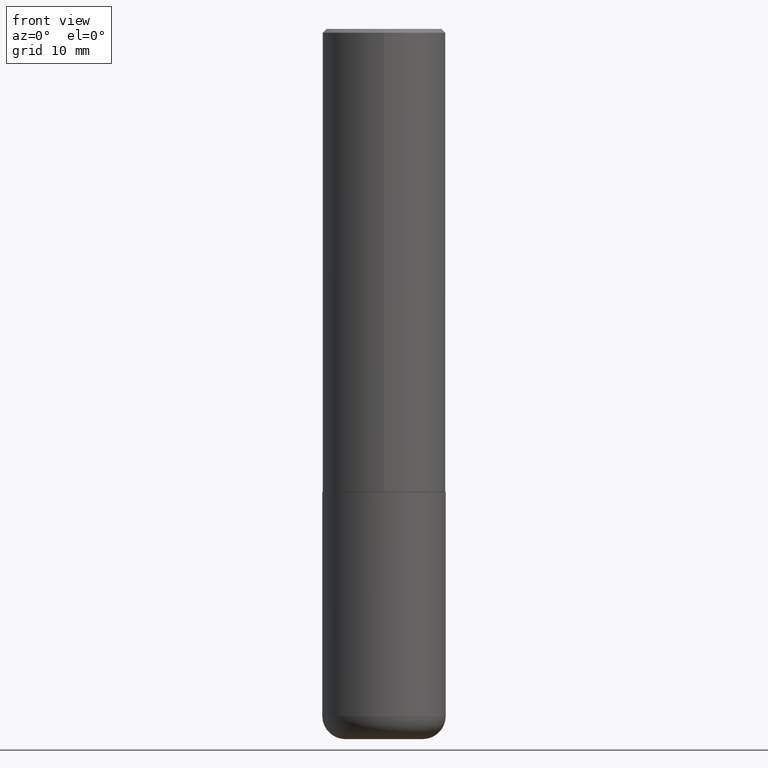
[diagram: clean part render]
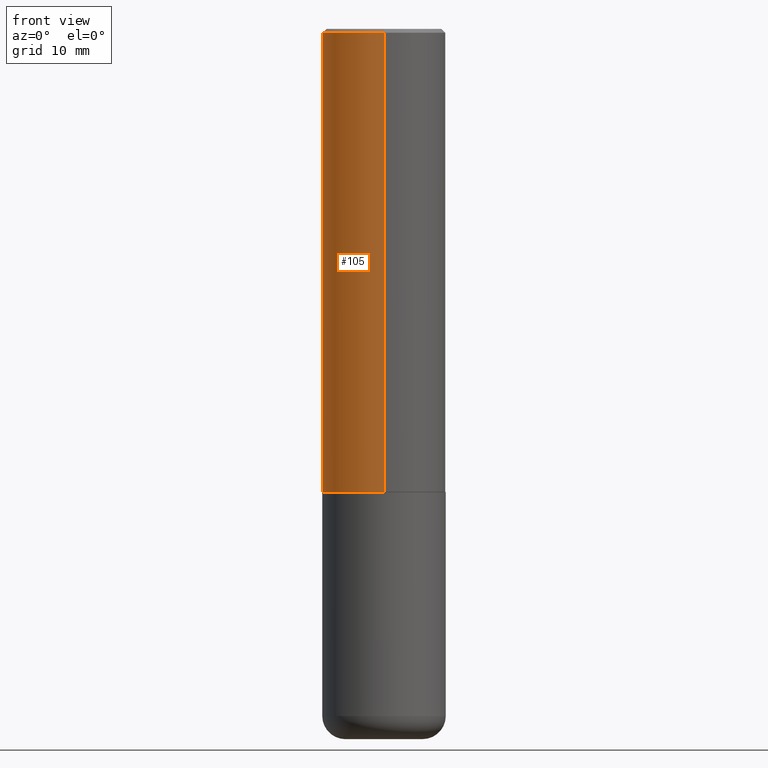
[diagram: same view with one face highlighted and labeled with its STEP entity id]
A machine part, front view. The second image highlights one B-rep face of the part: STEP entity #105.
In plain terms, the highlighted cylindrical surface (partial cylindrical patch) has radius 7.9997 mm, axis along (-0, 0, 1).
Its self-contained STEP definition (entity closure, byte-faithful):
#17 = ORIENTED_EDGE ( 'NONE', *, *, #366, .T. ) ;
#33 = EDGE_CURVE ( 'NONE', #193, #78, #50, .T. ) ;
#40 = EDGE_CURVE ( 'NONE', #196, #310, #337, .T. ) ;
#47 = DIRECTION ( 'NONE',  ( -6.982962677686265922E-15, -1.000000000000000000, 3.469564049740290009E-15 ) ) ;
#48 = CARTESIAN_POINT ( 'NONE',  ( -2.160713844398143363E-15, -0.3149500000000000632, -0.01999999999999896999 ) ) ;
#50 = CIRCLE ( 'NONE', #377, 0.3149500000000002853 ) ;
#54 = CARTESIAN_POINT ( 'NONE',  ( 2.237854346276435985E-15, 0.3149500000000001743, -1.099072284946507453E-15 ) ) ;
#60 = CARTESIAN_POINT ( 'NONE',  ( -2.199284095337233467E-15, -0.3149500000000085564, -2.361199999999998411 ) ) ;
#70 = ORIENTED_EDGE ( 'NONE', *, *, #40, .F. ) ;
#73 = DIRECTION ( 'NONE',  ( -2.446732064424175452E-29, 3.489672281144647968E-15, 1.000000000000000000 ) ) ;
#78 = VERTEX_POINT ( 'NONE', #60 ) ;
#90 = LINE ( 'NONE', #54, #357 ) ;
#96 = EDGE_CURVE ( 'NONE', #193, #196, #90, .T. ) ;
#105 = ADVANCED_FACE ( 'NONE', ( #123 ), #218, .T. ) ;
#123 = FACE_OUTER_BOUND ( 'NONE', #168, .T. ) ;
#145 = LINE ( 'NONE', #276, #339 ) ;
#168 = EDGE_LOOP ( 'NONE', ( #322, #374, #17, #70 ) ) ;
#173 = DIRECTION ( 'NONE',  ( -6.982962677686265922E-15, -1.000000000000000000, 3.483117034309591132E-15 ) ) ;
#191 = DIRECTION ( 'NONE',  ( -2.446732064424175452E-29, 3.489672281144648363E-15, 1.000000000000000000 ) ) ;
#192 = AXIS2_PLACEMENT_3D ( 'NONE', #200, #338, #173 ) ;
#193 = VERTEX_POINT ( 'NONE', #381 ) ;
#196 = VERTEX_POINT ( 'NONE', #267 ) ;
#200 = CARTESIAN_POINT ( 'NONE',  ( 4.893464128848368385E-31, -6.979344562289319109E-17, -0.02000000000000006981 ) ) ;
#205 = CARTESIAN_POINT ( 'NONE',  ( 5.777223750518362448E-29, -8.239814190238740974E-15, -2.361199999999999743 ) ) ;
#218 = CYLINDRICAL_SURFACE ( 'NONE', #330, 0.3149500000000001743 ) ;
#258 = DIRECTION ( 'NONE',  ( -6.982962677686264344E-15, -1.000000000000000000, 3.489672281144647968E-15 ) ) ;
#267 = CARTESIAN_POINT ( 'NONE',  ( 2.199284095337289871E-15, 0.3149499999999999522, -0.02000000000000116615 ) ) ;
#276 = CARTESIAN_POINT ( 'NONE',  ( -2.199284095337290265E-15, -0.3149500000000001743, 1.099072284946507453E-15 ) ) ;
#310 = VERTEX_POINT ( 'NONE', #48 ) ;
#321 = CARTESIAN_POINT ( 'NONE',  ( 0.000000000000000000, 0.000000000000000000, 0.000000000000000000 ) ) ;
#322 = ORIENTED_EDGE ( 'NONE', *, *, #96, .F. ) ;
#330 = AXIS2_PLACEMENT_3D ( 'NONE', #321, #355, #258 ) ;
#337 = CIRCLE ( 'NONE', #192, 0.3149500000000000077 ) ;
#338 = DIRECTION ( 'NONE',  ( -2.446732064424175452E-29, 3.489672281144647968E-15, 1.000000000000000000 ) ) ;
#339 = VECTOR ( 'NONE', #405, 39.37007874015748143 ) ;
#355 = DIRECTION ( 'NONE',  ( -2.446732064424175452E-29, 3.489672281144647968E-15, 1.000000000000000000 ) ) ;
#357 = VECTOR ( 'NONE', #191, 39.37007874015748143 ) ;
#366 = EDGE_CURVE ( 'NONE', #78, #310, #145, .T. ) ;
#374 = ORIENTED_EDGE ( 'NONE', *, *, #33, .T. ) ;
#377 = AXIS2_PLACEMENT_3D ( 'NONE', #205, #73, #47 ) ;
#381 = CARTESIAN_POINT ( 'NONE',  ( 2.237854346276465567E-15, 0.3149499999999920141, -2.361200000000000632 ) ) ;
#405 = DIRECTION ( 'NONE',  ( -2.446732064424175452E-29, 3.489672281144648363E-15, 1.000000000000000000 ) ) ;